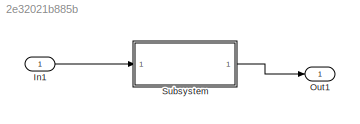
MODEL slx_2e32021b885b
KIND model
BLOCK [Inport] In1
  IconDisplay = Port number
BLOCK [Outport] Out1
  IconDisplay = Port number
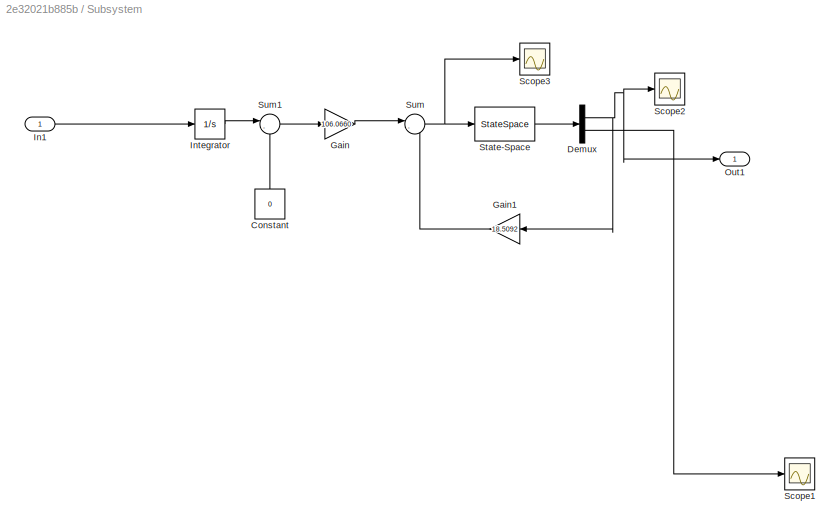
BLOCK [SubSystem] Subsystem
  Ports = [1, 1]
  RequestExecContextInheritance = off
BLOCK [Constant] Subsystem/Constant
  Value = 0
BLOCK [Demux] Subsystem/Demux
  DisplayOption = bar
  Outputs = 2
  Ports = [1, 2]
BLOCK [Gain] Subsystem/Gain
  Gain = 106.0660
  OutDataTypeStr = Inherit: Inherit via internal rule
  ParamDataTypeStr = Inherit: Inherit via internal rule
  SaturateOnIntegerOverflow = off
BLOCK [Gain] Subsystem/Gain1
  Gain = 18.5092
  OutDataTypeStr = Inherit: Inherit via internal rule
  ParamDataTypeStr = Inherit: Inherit via internal rule
  SaturateOnIntegerOverflow = off
BLOCK [Inport] Subsystem/In1
  IconDisplay = Port number
BLOCK [Integrator] Subsystem/Integrator
  Ports = [1, 1]
BLOCK [Outport] Subsystem/Out1
  IconDisplay = Port number
BLOCK [Scope] Subsystem/Scope1
  DataFormat = StructureWithTime
  Floating = off
  NumInputPorts = 1
  Ports = [1]
  SampleTime = 0
  ShowLegends = off
BLOCK [Scope] Subsystem/Scope2
  DataFormat = StructureWithTime
  Floating = off
  NumInputPorts = 1
  Ports = [1]
  SampleTime = 0
  SaveName = ScopeData2
  ShowLegends = off
BLOCK [Scope] Subsystem/Scope3
  DataFormat = StructureWithTime
  Floating = off
  NumInputPorts = 1
  Ports = [1]
  SampleTime = 0
  SaveName = ScopeData1
  ShowLegends = off
BLOCK [StateSpace] Subsystem/State-Space
  A = [-0.1333 0;1 0]
  B = [0.6667 0]'
  C = [1 0; 0 1]
  D = [0 0]'
  Ports = [1, 1]
  X0 = [0 0]
BLOCK [Sum] Subsystem/Sum
  IconShape = round
  InputSameDT = off
  Inputs = |--
  OutDataTypeStr = Inherit: Inherit via internal rule
  Ports = [2, 1]
  SaturateOnIntegerOverflow = off
BLOCK [Sum] Subsystem/Sum1
  IconShape = round
  InputSameDT = off
  Inputs = |-+
  OutDataTypeStr = Inherit: Inherit via internal rule
  Ports = [2, 1]
  SaturateOnIntegerOverflow = off
LINE In1:1 -> Subsystem:1
LINE Subsystem/Constant:1 -> Subsystem/Sum1:2
NET Subsystem/Demux:1 -> Subsystem/Gain1:1, Subsystem/Out1:1, Subsystem/Scope2:1
LINE Subsystem/Demux:2 -> Subsystem/Scope1:1
LINE Subsystem/Gain1:1 -> Subsystem/Sum:2
LINE Subsystem/Gain:1 -> Subsystem/Sum:1
LINE Subsystem/In1:1 -> Subsystem/Integrator:1
LINE Subsystem/Integrator:1 -> Subsystem/Sum1:1
LINE Subsystem/State-Space:1 -> Subsystem/Demux:1
LINE Subsystem/Sum1:1 -> Subsystem/Gain:1
NET Subsystem/Sum:1 -> Subsystem/Scope3:1, Subsystem/State-Space:1
LINE Subsystem:1 -> Out1:1
note: NET lines group one-source signal fan-out (src -> all destinations, sorted); 1:1 wires keep LINE
